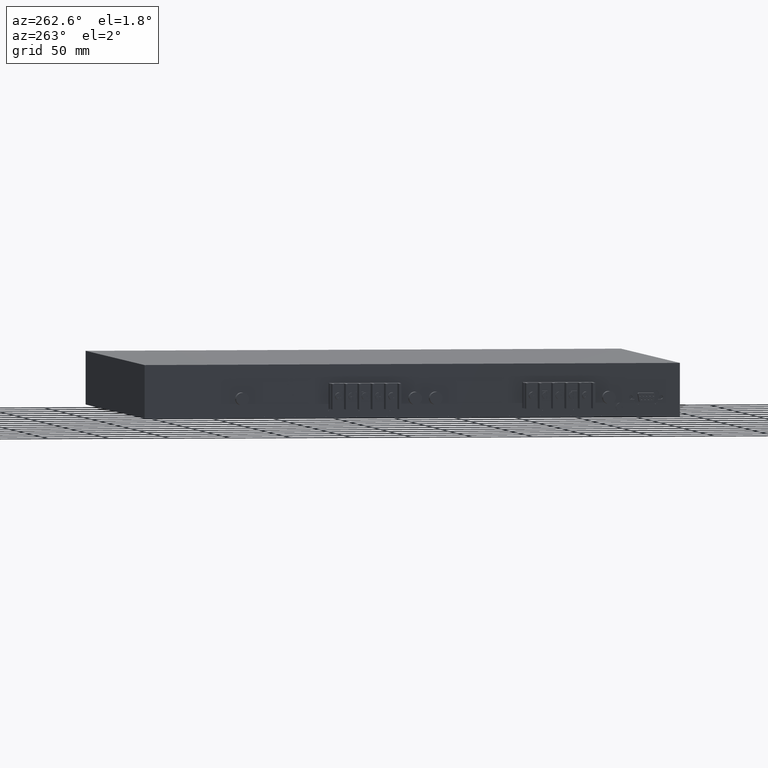
[diagram: clean part render]
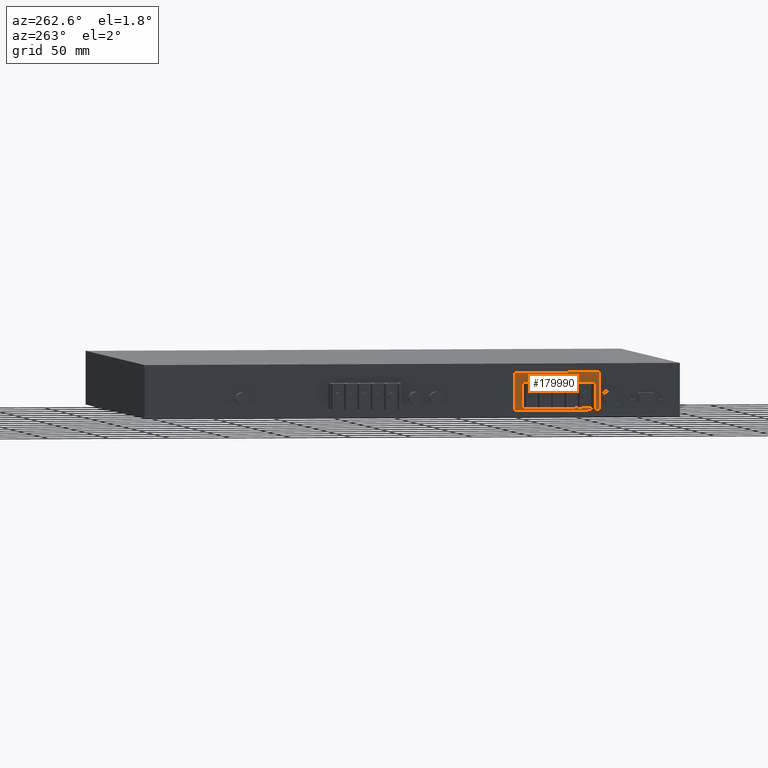
[diagram: same view with one face highlighted and labeled with its STEP entity id]
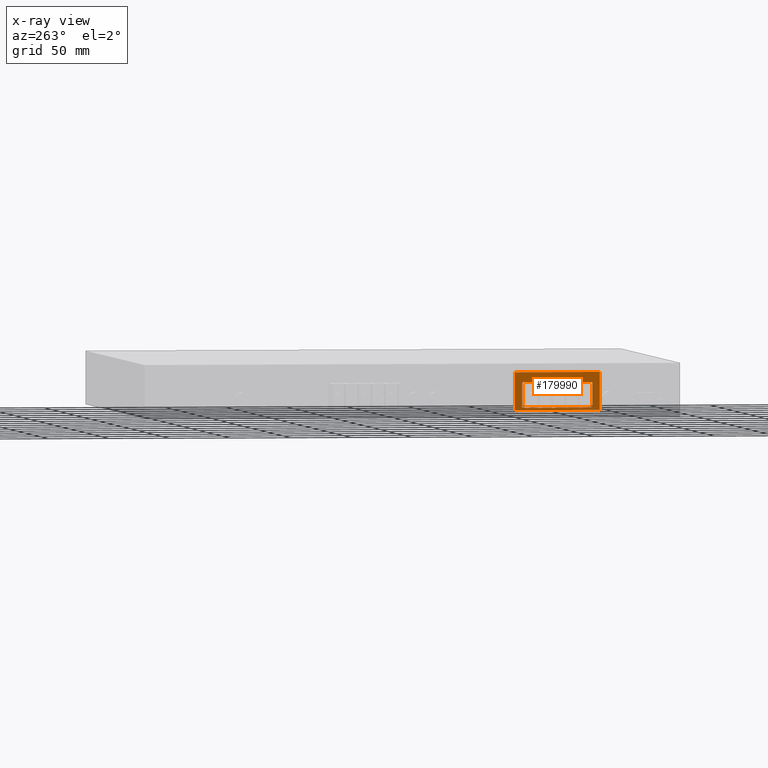
[diagram: x-ray of the same camera — body ghosted, the highlighted face saturated]
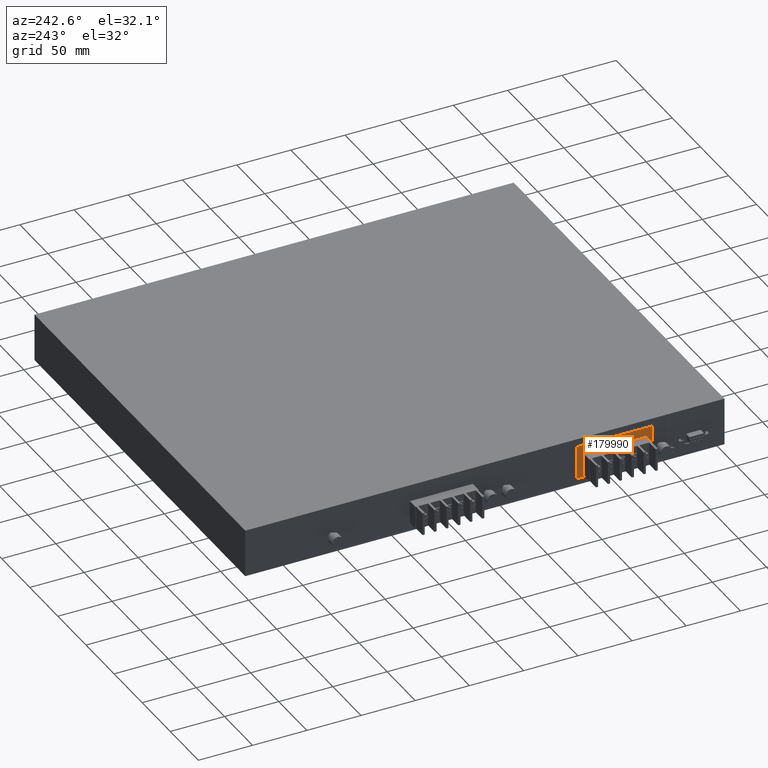
[diagram: same view with one face highlighted and labeled with its STEP entity id]
A machine part, auxiliary view. The second image highlights one B-rep face of the part: STEP entity #179990.
The next image is the same camera in x-ray: the body ghosted, the highlighted face saturated — about 0% of this face is hidden behind the body in this view.
A second angle (auxiliary view) of the same face is appended — the face is thin or edge-on in the first view.
In plain terms, the highlighted planar face has unit normal (-1, 0, 0).
Its self-contained STEP definition (entity closure, byte-faithful):
#67350=CARTESIAN_POINT('',(-148.593986957435,-10.9963677763395,
0.199999999980264));
#67360=VERTEX_POINT('',#67350);
#67390=CARTESIAN_POINT('',(-148.593986957435,0.,0.199999999980264));
#67400=DIRECTION('',(0.,-1.,0.));
#67410=VECTOR('',#67400,1.);
#67420=LINE('',#67390,#67410);
#67430=CARTESIAN_POINT('',(-148.593986957435,-31.9963677763395,
0.199999999980264));
#67440=VERTEX_POINT('',#67430);
#67450=EDGE_CURVE('',#67360,#67440,#67420,.T.);
#70170=CARTESIAN_POINT('',(-90.5939869574353,-10.9963677763395,
0.199999999980264));
#70180=VERTEX_POINT('',#70170);
#70260=CARTESIAN_POINT('',(-90.5939869574353,-31.9963677763395,
0.199999999980264));
#70270=VERTEX_POINT('',#70260);
#70300=CARTESIAN_POINT('',(-90.5939869574353,0.,0.199999999980264));
#70310=DIRECTION('',(0.,1.,0.));
#70320=VECTOR('',#70310,1.);
#70330=LINE('',#70300,#70320);
#70340=EDGE_CURVE('',#70270,#70180,#70330,.T.);
#130230=CARTESIAN_POINT('',(-154.593986957435,0.,0.199999999980264));
#130240=DIRECTION('',(0.,1.,0.));
#130250=VECTOR('',#130240,1.);
#130260=LINE('',#130230,#130250);
#130270=CARTESIAN_POINT('',(-154.593986957435,-33.7963677763396,
0.199999999980264));
#130280=VERTEX_POINT('',#130270);
#130290=CARTESIAN_POINT('',(-154.593986957435,-2.79636777633966,
0.199999999980264));
#130300=VERTEX_POINT('',#130290);
#130310=EDGE_CURVE('',#130280,#130300,#130260,.T.);
#130700=CARTESIAN_POINT('',(0.,-33.7963677763396,0.199999999980264));
#130710=DIRECTION('',(-1.,0.,0.));
#130720=VECTOR('',#130710,1.);
#130730=LINE('',#130700,#130720);
#130740=CARTESIAN_POINT('',(-84.593986957435,-33.7963677763396,
0.199999999980264));
#130750=VERTEX_POINT('',#130740);
#130760=EDGE_CURVE('',#130750,#130280,#130730,.T.);
#131010=CARTESIAN_POINT('',(-84.593986957435,0.,0.199999999980264));
#131020=DIRECTION('',(0.,-1.,0.));
#131030=VECTOR('',#131020,1.);
#131040=LINE('',#131010,#131030);
#131050=CARTESIAN_POINT('',(-84.593986957435,-2.79636777633966,
0.199999999980264));
#131060=VERTEX_POINT('',#131050);
#131070=EDGE_CURVE('',#131060,#130750,#131040,.T.);
#131320=CARTESIAN_POINT('',(0.,-2.79636777633966,0.199999999980264));
#131330=DIRECTION('',(1.,0.,0.));
#131340=VECTOR('',#131330,1.);
#131350=LINE('',#131320,#131340);
#131360=EDGE_CURVE('',#130300,#131060,#131350,.T.);
#152000=CARTESIAN_POINT('',(0.,-31.9963677763395,0.199999999980264));
#152010=DIRECTION('',(-1.,0.,0.));
#152020=VECTOR('',#152010,1.);
#152030=LINE('',#152000,#152020);
#152040=EDGE_CURVE('',#70270,#67440,#152030,.T.);
#168630=CARTESIAN_POINT('',(0.,-10.9963677763395,0.199999999980264));
#168640=DIRECTION('',(-1.,0.,0.));
#168650=VECTOR('',#168640,1.);
#168660=LINE('',#168630,#168650);
#168670=EDGE_CURVE('',#70180,#67360,#168660,.T.);
#179820=CARTESIAN_POINT('',(-82.843920807435,-34.5714339263396,
0.199999999980264));
#179830=DIRECTION('',(0.,0.,-1.));
#179840=DIRECTION('',(-1.,0.,0.));
#179850=AXIS2_PLACEMENT_3D('',#179820,#179830,#179840);
#179860=PLANE('',#179850);
#179870=ORIENTED_EDGE('',*,*,#131070,.T.);
#179880=ORIENTED_EDGE('',*,*,#131360,.T.);
#179890=ORIENTED_EDGE('',*,*,#130310,.T.);
#179900=ORIENTED_EDGE('',*,*,#130760,.T.);
#179910=EDGE_LOOP('',(#179900,#179890,#179880,#179870));
#179920=FACE_OUTER_BOUND('',#179910,.T.);
#179930=ORIENTED_EDGE('',*,*,#70340,.T.);
#179940=ORIENTED_EDGE('',*,*,#152040,.F.);
#179950=ORIENTED_EDGE('',*,*,#67450,.T.);
#179960=ORIENTED_EDGE('',*,*,#168670,.T.);
#179970=EDGE_LOOP('',(#179960,#179950,#179940,#179930));
#179980=FACE_BOUND('',#179970,.T.);
#179990=ADVANCED_FACE('',(#179920,#179980),#179860,.T.);